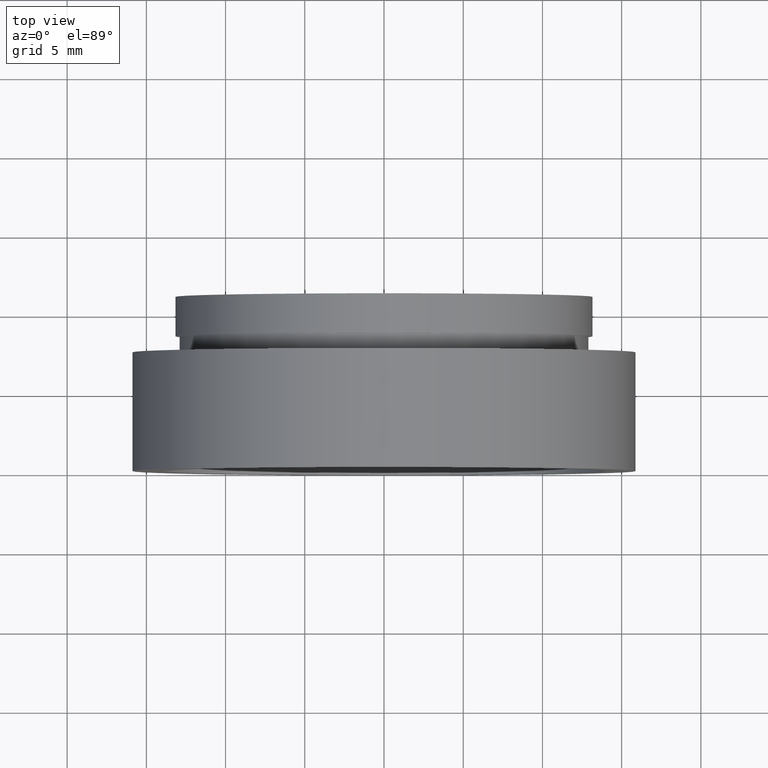
[diagram: clean part render]
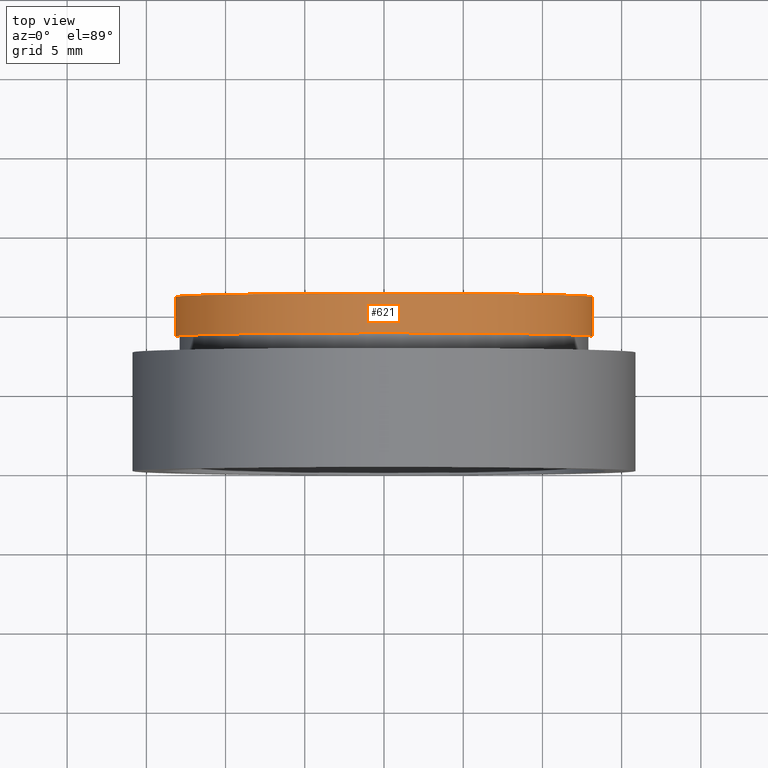
[diagram: same view with one face highlighted and labeled with its STEP entity id]
A machine part, top view. The second image highlights one B-rep face of the part: STEP entity #621.
In plain terms, the highlighted cylindrical surface (partial cylindrical patch) has radius 13.16 mm, axis along (-0, 1, -0).
Its self-contained STEP definition (entity closure, byte-faithful):
#2 = VECTOR ( 'NONE', #235, 1000.000000000000000 ) ;
#4 = ORIENTED_EDGE ( 'NONE', *, *, #34, .T. ) ;
#15 = VERTEX_POINT ( 'NONE', #344 ) ;
#34 = EDGE_CURVE ( 'NONE', #374, #433, #264, .T. ) ;
#74 = CARTESIAN_POINT ( 'NONE',  ( 13.16000000000000200, 8.500000000000000000, 1.611635187677917100E-015 ) ) ;
#97 = DIRECTION ( 'NONE',  ( -1.000000000000000000, -1.318178933113075200E-016, 0.0000000000000000000 ) ) ;
#134 = EDGE_CURVE ( 'NONE', #15, #240, #556, .T. ) ;
#156 = DIRECTION ( 'NONE',  ( -1.224646799147351000E-016, 1.000000000000000000, -0.0000000000000000000 ) ) ;
#188 = EDGE_LOOP ( 'NONE', ( #484, #4, #576, #281 ) ) ;
#189 = EDGE_CURVE ( 'NONE', #240, #433, #616, .T. ) ;
#209 = CARTESIAN_POINT ( 'NONE',  ( 0.0000000000000000000, 16.88601823708207700, 0.0000000000000000000 ) ) ;
#235 = DIRECTION ( 'NONE',  ( -1.224646799147351000E-016, 1.000000000000000000, -0.0000000000000000000 ) ) ;
#240 = VERTEX_POINT ( 'NONE', #603 ) ;
#246 = CARTESIAN_POINT ( 'NONE',  ( 7.208293393765502500E-016, 10.99999999999999600, 0.0000000000000000000 ) ) ;
#253 = CARTESIAN_POINT ( 'NONE',  ( 1.026991039163387700E-015, 8.499999999999998200, 0.0000000000000000000 ) ) ;
#264 = LINE ( 'NONE', #489, #2 ) ;
#281 = ORIENTED_EDGE ( 'NONE', *, *, #134, .F. ) ;
#285 = VECTOR ( 'NONE', #545, 1000.000000000000000 ) ;
#298 = DIRECTION ( 'NONE',  ( -1.000000000000000000, -1.318178933113075500E-016, 0.0000000000000000000 ) ) ;
#306 = DIRECTION ( 'NONE',  ( -1.000000000000000000, 0.0000000000000000000, 0.0000000000000000000 ) ) ;
#344 = CARTESIAN_POINT ( 'NONE',  ( -13.15999999999999700, 8.499999999999996400, 0.0000000000000000000 ) ) ;
#374 = VERTEX_POINT ( 'NONE', #74 ) ;
#383 = CYLINDRICAL_SURFACE ( 'NONE', #393, 13.15999999999999800 ) ;
#393 = AXIS2_PLACEMENT_3D ( 'NONE', #209, #605, #306 ) ;
#431 = CARTESIAN_POINT ( 'NONE',  ( -13.15999999999999800, 16.88601823708207700, 0.0000000000000000000 ) ) ;
#433 = VERTEX_POINT ( 'NONE', #561 ) ;
#440 = FACE_OUTER_BOUND ( 'NONE', #188, .T. ) ;
#453 = DIRECTION ( 'NONE',  ( -1.224646799147351000E-016, 1.000000000000000000, -0.0000000000000000000 ) ) ;
#479 = EDGE_CURVE ( 'NONE', #15, #374, #551, .T. ) ;
#484 = ORIENTED_EDGE ( 'NONE', *, *, #479, .T. ) ;
#489 = CARTESIAN_POINT ( 'NONE',  ( 13.15999999999999800, 16.88601823708207700, 1.611635187677916700E-015 ) ) ;
#493 = AXIS2_PLACEMENT_3D ( 'NONE', #246, #453, #97 ) ;
#545 = DIRECTION ( 'NONE',  ( -1.224646799147351000E-016, 1.000000000000000000, -0.0000000000000000000 ) ) ;
#551 = CIRCLE ( 'NONE', #581, 13.15999999999999800 ) ;
#556 = LINE ( 'NONE', #431, #285 ) ;
#561 = CARTESIAN_POINT ( 'NONE',  ( 13.16000000000000200, 10.99999999999999800, 1.611635187677917100E-015 ) ) ;
#576 = ORIENTED_EDGE ( 'NONE', *, *, #189, .F. ) ;
#581 = AXIS2_PLACEMENT_3D ( 'NONE', #253, #156, #298 ) ;
#603 = CARTESIAN_POINT ( 'NONE',  ( -13.16000000000000000, 10.99999999999999500, 0.0000000000000000000 ) ) ;
#605 = DIRECTION ( 'NONE',  ( -1.224646799147351000E-016, 1.000000000000000000, -0.0000000000000000000 ) ) ;
#616 = CIRCLE ( 'NONE', #493, 13.16000000000000000 ) ;
#621 = ADVANCED_FACE ( 'NONE', ( #440 ), #383, .T. ) ;